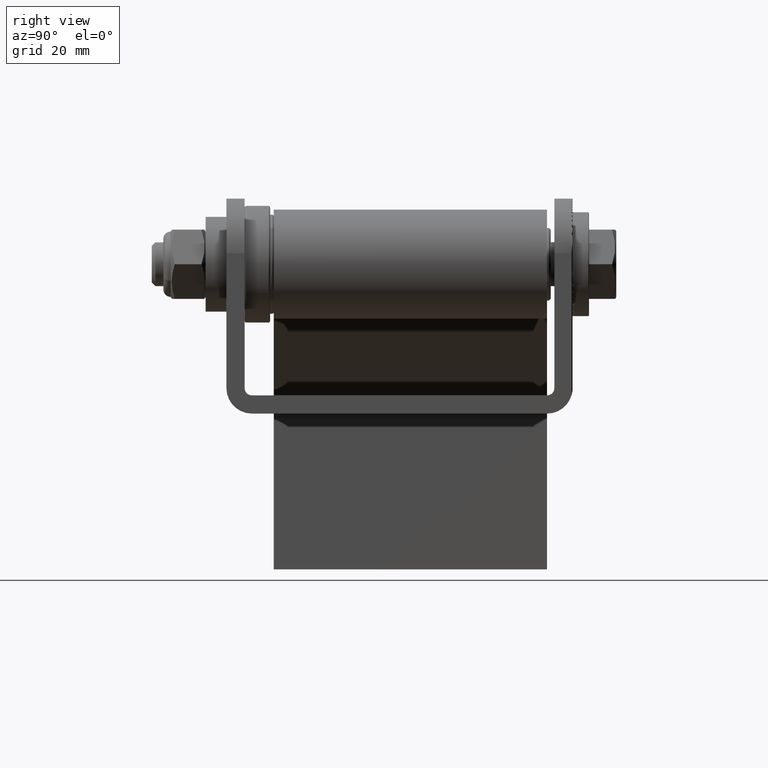
[diagram: clean part render]
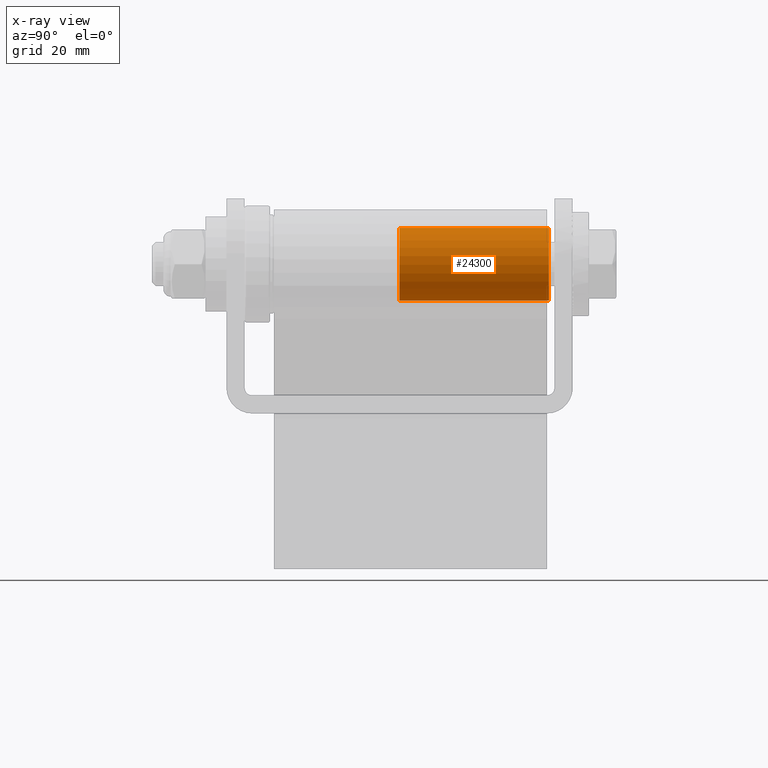
[diagram: x-ray — body ghosted, one internal face saturated and labeled with its STEP entity id]
A machine part, right view, then the same camera in x-ray: the body is ghosted and one INTERNAL B-rep face — a face not visible from any outside direction — is saturated and labeled: STEP entity #24300.
In plain terms, the highlighted cylindrical surface (edge-blend (fillet) strip) has radius 10 mm, axis along (0, -1, -0).
Its self-contained STEP definition (entity closure, byte-faithful):
#1018 = CARTESIAN_POINT ( 'NONE',  ( 0.0000000000000000000, 42.00000000000000000, 0.0000000000000000000 ) ) ;
#3416 = DIRECTION ( 'NONE',  ( 0.0000000000000000000, 0.0000000000000000000, -1.000000000000000000 ) ) ;
#3644 = DIRECTION ( 'NONE',  ( 0.0000000000000000000, 0.0000000000000000000, 1.000000000000000000 ) ) ;
#3892 = CARTESIAN_POINT ( 'NONE',  ( 0.0000000000000000000, 41.50000000000003600, -9.999999999999998200 ) ) ;
#4006 = AXIS2_PLACEMENT_3D ( 'NONE', #17960, #22421, #3644 ) ;
#4282 = EDGE_CURVE ( 'NONE', #26409, #5617, #20347, .T. ) ;
#4937 = ORIENTED_EDGE ( 'NONE', *, *, #18252, .T. ) ;
#5617 = VERTEX_POINT ( 'NONE', #8169 ) ;
#6409 = DIRECTION ( 'NONE',  ( -0.0000000000000000000, 1.000000000000000000, -0.0000000000000000000 ) ) ;
#6586 = CARTESIAN_POINT ( 'NONE',  ( 0.0000000000000000000, 0.5000000000000282000, 0.0000000000000000000 ) ) ;
#8169 = CARTESIAN_POINT ( 'NONE',  ( 0.0000000000000000000, 0.5000000000000282000, -9.999999999999998200 ) ) ;
#8508 = DIRECTION ( 'NONE',  ( 0.0000000000000000000, 0.0000000000000000000, 1.000000000000000000 ) ) ;
#8908 = EDGE_LOOP ( 'NONE', ( #4937, #11051, #13957, #24299 ) ) ;
#9031 = CIRCLE ( 'NONE', #10172, 9.999999999999998200 ) ;
#9411 = FACE_OUTER_BOUND ( 'NONE', #8908, .T. ) ;
#9867 = VECTOR ( 'NONE', #14811, 1000.000000000000000 ) ;
#10172 = AXIS2_PLACEMENT_3D ( 'NONE', #6586, #6409, #8508 ) ;
#11051 = ORIENTED_EDGE ( 'NONE', *, *, #13062, .T. ) ;
#12778 = VERTEX_POINT ( 'NONE', #18964 ) ;
#13062 = EDGE_CURVE ( 'NONE', #12778, #20161, #26703, .T. ) ;
#13875 = DIRECTION ( 'NONE',  ( -0.0000000000000000000, -1.000000000000000000, -0.0000000000000000000 ) ) ;
#13957 = ORIENTED_EDGE ( 'NONE', *, *, #16210, .T. ) ;
#14811 = DIRECTION ( 'NONE',  ( -0.0000000000000000000, -1.000000000000000000, -0.0000000000000000000 ) ) ;
#16210 = EDGE_CURVE ( 'NONE', #20161, #5617, #9031, .T. ) ;
#16881 = CIRCLE ( 'NONE', #4006, 9.999999999999998200 ) ;
#16900 = VECTOR ( 'NONE', #22295, 1000.000000000000000 ) ;
#17938 = CARTESIAN_POINT ( 'NONE',  ( 1.224646799147352900E-015, 42.00000000000000000, 9.999999999999998200 ) ) ;
#17960 = CARTESIAN_POINT ( 'NONE',  ( 0.0000000000000000000, 41.50000000000003600, 0.0000000000000000000 ) ) ;
#18252 = EDGE_CURVE ( 'NONE', #26409, #12778, #16881, .T. ) ;
#18964 = CARTESIAN_POINT ( 'NONE',  ( 1.224646799147352900E-015, 41.50000000000003600, 9.999999999999998200 ) ) ;
#19892 = CYLINDRICAL_SURFACE ( 'NONE', #26958, 9.999999999999998200 ) ;
#20161 = VERTEX_POINT ( 'NONE', #24272 ) ;
#20347 = LINE ( 'NONE', #24345, #9867 ) ;
#22295 = DIRECTION ( 'NONE',  ( -0.0000000000000000000, -1.000000000000000000, -0.0000000000000000000 ) ) ;
#22421 = DIRECTION ( 'NONE',  ( 0.0000000000000000000, -1.000000000000000000, 0.0000000000000000000 ) ) ;
#24272 = CARTESIAN_POINT ( 'NONE',  ( 1.224646799147352900E-015, 0.5000000000000282000, 9.999999999999998200 ) ) ;
#24299 = ORIENTED_EDGE ( 'NONE', *, *, #4282, .F. ) ;
#24300 = ADVANCED_FACE ( 'NONE', ( #9411 ), #19892, .T. ) ;
#24345 = CARTESIAN_POINT ( 'NONE',  ( 0.0000000000000000000, 42.00000000000000000, -9.999999999999998200 ) ) ;
#26409 = VERTEX_POINT ( 'NONE', #3892 ) ;
#26703 = LINE ( 'NONE', #17938, #16900 ) ;
#26958 = AXIS2_PLACEMENT_3D ( 'NONE', #1018, #13875, #3416 ) ;